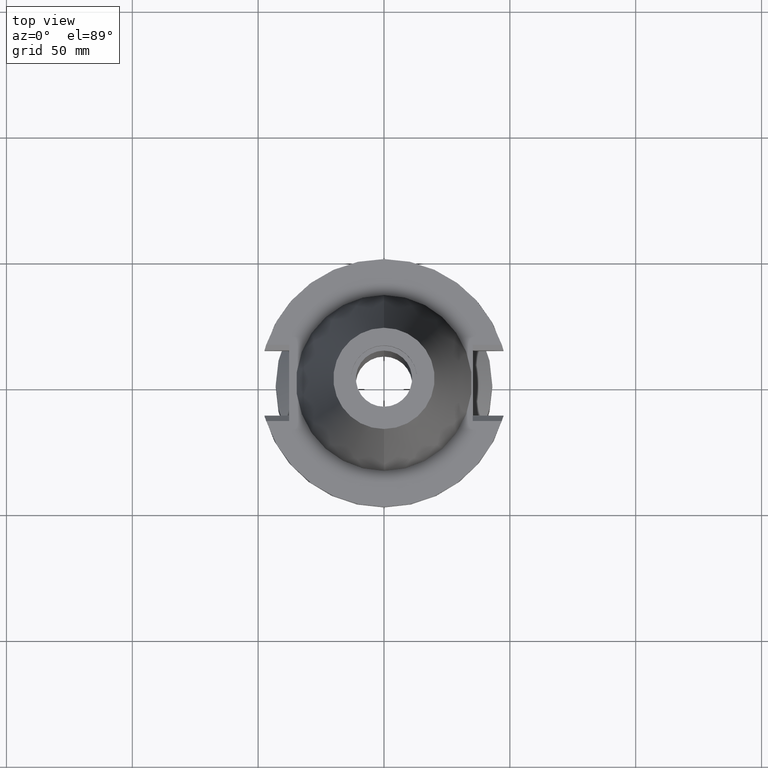
[diagram: clean part render]
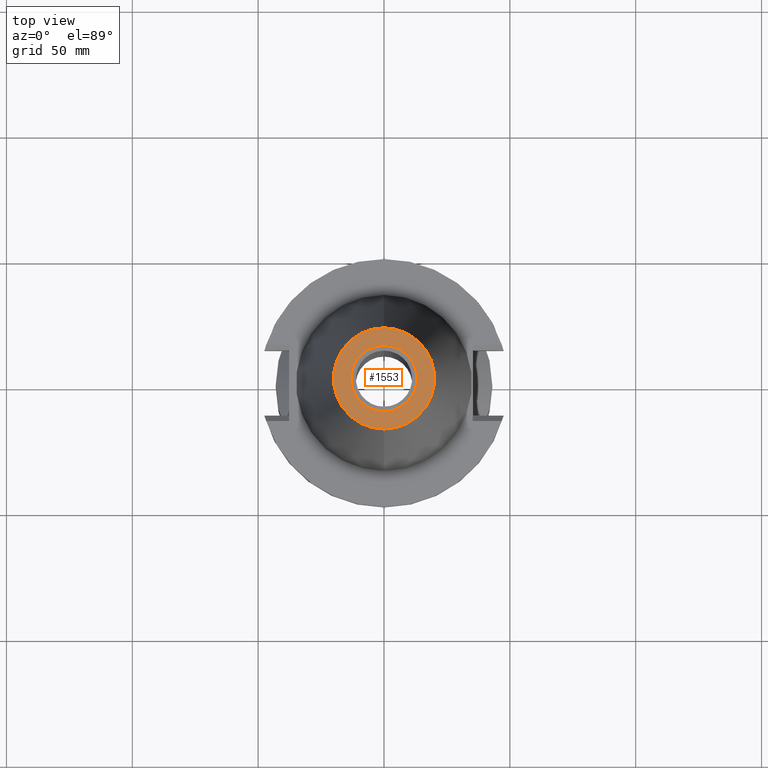
[diagram: same view with one face highlighted and labeled with its STEP entity id]
A machine part, top view. The second image highlights one B-rep face of the part: STEP entity #1553.
In plain terms, the highlighted planar face has unit normal (0, 0, -1).
Its self-contained STEP definition (entity closure, byte-faithful):
#17=CARTESIAN_POINT('',(0.E0,1.846767373114E-14,1.016E2));
#18=DIRECTION('',(0.E0,0.E0,-1.E0));
#19=DIRECTION('',(0.E0,-1.E0,0.E0));
#20=AXIS2_PLACEMENT_3D('',#17,#18,#19);
#26=CARTESIAN_POINT('',(0.E0,1.846767373114E-14,1.016E2));
#27=DIRECTION('',(0.E0,0.E0,-1.E0));
#28=DIRECTION('',(0.E0,1.E0,0.E0));
#29=AXIS2_PLACEMENT_3D('',#26,#27,#28);
#34=CARTESIAN_POINT('',(0.E0,2.625887666732E-14,1.016E2));
#35=DIRECTION('',(0.E0,0.E0,1.E0));
#36=DIRECTION('',(0.E0,-1.E0,0.E0));
#37=AXIS2_PLACEMENT_3D('',#34,#35,#36);
#42=CARTESIAN_POINT('',(0.E0,2.625887666732E-14,1.016E2));
#43=DIRECTION('',(0.E0,0.E0,1.E0));
#44=DIRECTION('',(0.E0,1.E0,0.E0));
#45=AXIS2_PLACEMENT_3D('',#42,#43,#44);
#1318=CARTESIAN_POINT('',(0.E0,-2.010832422388E1,1.016E2));
#1319=CARTESIAN_POINT('',(0.E0,2.010832422388E1,1.016E2));
#1320=VERTEX_POINT('',#1318);
#1321=VERTEX_POINT('',#1319);
#1322=CARTESIAN_POINT('',(0.E0,-1.3115E1,1.016E2));
#1323=CARTESIAN_POINT('',(0.E0,1.3115E1,1.016E2));
#1324=VERTEX_POINT('',#1322);
#1325=VERTEX_POINT('',#1323);
#1536=CARTESIAN_POINT('',(0.E0,2.468887947081E-14,1.016E2));
#1537=DIRECTION('',(0.E0,0.E0,-1.E0));
#1538=DIRECTION('',(0.E0,-1.E0,0.E0));
#1539=AXIS2_PLACEMENT_3D('',#1536,#1537,#1538);
#1540=PLANE('',#1539);
#1542=ORIENTED_EDGE('',*,*,#1541,.T.);
#1544=ORIENTED_EDGE('',*,*,#1543,.T.);
#1545=EDGE_LOOP('',(#1542,#1544));
#1546=FACE_OUTER_BOUND('',#1545,.F.);
#1548=ORIENTED_EDGE('',*,*,#1547,.T.);
#1550=ORIENTED_EDGE('',*,*,#1549,.T.);
#1551=EDGE_LOOP('',(#1548,#1550));
#1552=FACE_BOUND('',#1551,.F.);
#21=CIRCLE('',#20,2.010832422388E1);
#30=CIRCLE('',#29,2.010832422388E1);
#38=CIRCLE('',#37,1.3115E1);
#46=CIRCLE('',#45,1.3115E1);
#1541=EDGE_CURVE('',#1320,#1321,#21,.T.);
#1543=EDGE_CURVE('',#1321,#1320,#30,.T.);
#1547=EDGE_CURVE('',#1324,#1325,#38,.T.);
#1549=EDGE_CURVE('',#1325,#1324,#46,.T.);
#1553=ADVANCED_FACE('',(#1546,#1552),#1540,.F.);